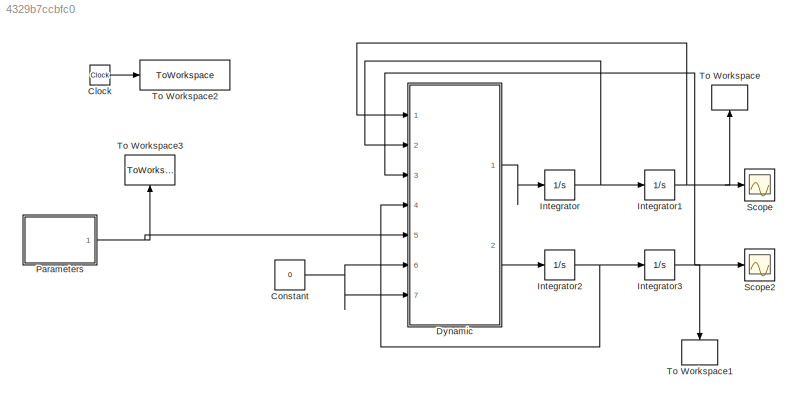
MODEL slx_4329b7ccbfc0
KIND model
CONFIG AbsTol = auto
CONFIG EnableMultiTasking = off
CONFIG FixedStep = .01
CONFIG MaxStep = auto
CONFIG MinStep = auto
CONFIG RelTol = 1e-3
CONFIG SampleTimeConstraint = Unconstrained
CONFIG SolverName = FixedStepAuto
CONFIG StartTime = 0.0
CONFIG StopTime = 10.0
BLOCK [Clock] Clock
BLOCK [Constant] Constant
  Value = 0
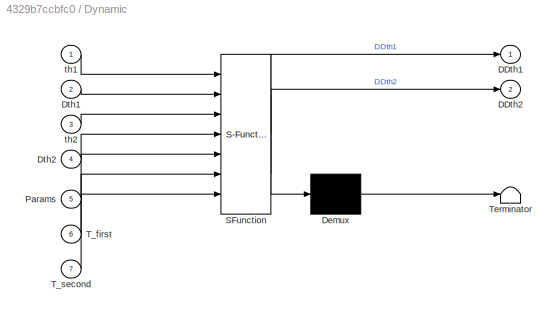
BLOCK [SubSystem] Dynamic
  ErrorFcn = Stateflow.Translate.translate
  PermitHierarchicalResolution = ExplicitOnly
  Ports = [7, 2]
  RequestExecContextInheritance = off
  SFBlockType = MATLAB Function
  TreatAsAtomicUnit = on
BLOCK [Demux] Dynamic/ Demux 
  Outputs = 1
  Ports = [1, 1]
BLOCK [S-Function] Dynamic/ SFunction 
  EnableBusSupport = on
  FunctionName = sf_sfun
  PortCounts = [7 3]
  Ports = [7, 3]
  SFcnIsStateOwnerBlock = off
  SFunctionDeploymentMode = off
  Tag = Stateflow S-Function 2
BLOCK [Terminator] Dynamic/ Terminator 
BLOCK [Outport] Dynamic/DDth1
BLOCK [Outport] Dynamic/DDth2
  Port = 2
BLOCK [Inport] Dynamic/Dth1
  Port = 2
BLOCK [Inport] Dynamic/Dth2
  Port = 4
BLOCK [Inport] Dynamic/Params
  Port = 5
BLOCK [Inport] Dynamic/T_first
  Port = 6
BLOCK [Inport] Dynamic/T_second
  Port = 7
BLOCK [Inport] Dynamic/th1
BLOCK [Inport] Dynamic/th2
  Port = 3
BLOCK [Integrator] Integrator
  Ports = [1, 1]
BLOCK [Integrator] Integrator1
  Ports = [1, 1]
BLOCK [Integrator] Integrator2
  Ports = [1, 1]
BLOCK [Integrator] Integrator3
  Ports = [1, 1]
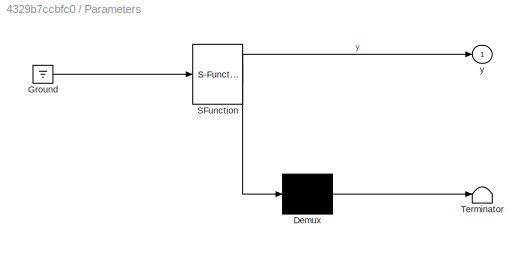
BLOCK [SubSystem] Parameters
  ErrorFcn = Stateflow.Translate.translate
  PermitHierarchicalResolution = ExplicitOnly
  Ports = [0, 1]
  RequestExecContextInheritance = off
  SFBlockType = MATLAB Function
  TreatAsAtomicUnit = on
BLOCK [Demux] Parameters/ Demux 
  Outputs = 1
  Ports = [1, 1]
BLOCK [Ground] Parameters/ Ground 
BLOCK [S-Function] Parameters/ SFunction 
  EnableBusSupport = on
  FunctionName = sf_sfun
  PortCounts = [1 2]
  Ports = [1, 2]
  SFcnIsStateOwnerBlock = off
  SFunctionDeploymentMode = off
  Tag = Stateflow S-Function 7
BLOCK [Terminator] Parameters/ Terminator 
BLOCK [Outport] Parameters/y
BLOCK [Scope] Scope
  Floating = off
  NumInputPorts = 1
  Ports = [1]
  ScopeSpecificationString = Simulink.scopes.TimeScopeBlockCfg('CurrentConfiguration', extmgr.ConfigurationSet(extmgr.Configuration('Core','General UI',true),extmgr.Configuration('Core','Source UI',true),extmgr.Configuration('Sources','WiredSimulink',true),extmgr.Configuration('Visuals','Time Domain',true,'SerializedDisplays',{struct('MinYLimReal','-3.23717','MaxYLimReal','0.35969','YLabelReal','','MinYLimMag','0.00000','MaxY...<+1368ch>
BLOCK [Scope] Scope2
  Floating = off
  NumInputPorts = 1
  Ports = [1]
  ScopeSpecificationString = Simulink.scopes.TimeScopeBlockCfg('CurrentConfiguration', extmgr.ConfigurationSet(extmgr.Configuration('Core','General UI',true),extmgr.Configuration('Core','Source UI',true),extmgr.Configuration('Sources','WiredSimulink',true,'DataLoggingVariableName','ScopeData2'),extmgr.Configuration('Visuals','Time Domain',true,'SerializedDisplays',{struct('MinYLimReal','-48.9142','MaxYLimReal','21.37729','YLa...<+1409ch>
BLOCK [ToWorkspace] To Workspace
  FixptAsFi = on
  MaxDataPoints = inf
  NameLocation = right
  Ports = [1]
  SampleTime = -1
  Save2DSignal = 2-D array (concatenate along first dimension)
  VariableName = th1
BLOCK [ToWorkspace] To Workspace1
  FixptAsFi = on
  MaxDataPoints = inf
  NameLocation = left
  Ports = [1]
  SampleTime = -1
  Save2DSignal = 2-D array (concatenate along first dimension)
  VariableName = th2
BLOCK [ToWorkspace] To Workspace2
  FixptAsFi = on
  MaxDataPoints = inf
  Ports = [1]
  SampleTime = -1
  Save2DSignal = 2-D array (concatenate along first dimension)
  VariableName = time
BLOCK [ToWorkspace] To Workspace3
  FixptAsFi = on
  MaxDataPoints = 1
  NameLocation = right
  Ports = [1]
  Save2DSignal = 2-D array (concatenate along first dimension)
  VariableName = params
LINE Clock:1 -> To Workspace2:1
NET Constant:1 -> Dynamic:6, Dynamic:7
LINE Dynamic:1 -> Integrator:1
LINE Dynamic:2 -> Integrator2:1
NET Integrator1:1 -> Dynamic:1, Scope:1, To Workspace:1
NET Integrator2:1 -> Dynamic:4, Integrator3:1
NET Integrator3:1 -> Dynamic:3, Scope2:1, To Workspace1:1
NET Integrator:1 -> Dynamic:2, Integrator1:1
NET Parameters:1 -> Dynamic:5, To Workspace3:1
note: NET lines group one-source signal fan-out (src -> all destinations, sorted); 1:1 wires keep LINE
CHART Dynamic states=1 transitions=1
  STATE_LABEL 'eML_blk_kernel()'
  STATE_LABEL "SCRIPT:\nfunction [DDth1,DDth2]  = fcn(th1, Dth1, th2, Dth2, Params, T_first, T_second)\n\n    m1=Params(1); % First arm's mass (kg)\n    m2 =Params(2); % Second arm's mass (kg)\n    g =Params(3); % Gravity constant\n    c1 =Params(4); % Damping coeff of first joint\n    c2 =Params(5); % Damping coeff of second joint\n    Kt1 =Params(6); % Spring coeff of first joint\n    Kt2 =Params(7); % Spring coeff of ...<+1565ch>"
CHART Parameters states=1 transitions=1
  STATE_LABEL 'eML_blk_kernel()'
  STATE_LABEL "SCRIPT:\nfunction y = fcn()\n    m1=1.1826; % First arm's mass (kg)\n    m2 =0.4453; % Second arm's mass (kg)\n    g =9.81; % Gravity constant\n    c1 =.01; % Damping coeff of first joint\n    c2 =0; % Damping coeff of second joint\n    Kt1 =0; % Spring coeff of first joint\n    Kt2 =0; % Spring coeff of second joint\n    l1 =0.2513; % First arm's length (m)\n    l2 =0.1899; % Second arm's length(m)\n    lc1...<+196ch>"
CHART  states=0 transitions=0
CHART  states=0 transitions=0
